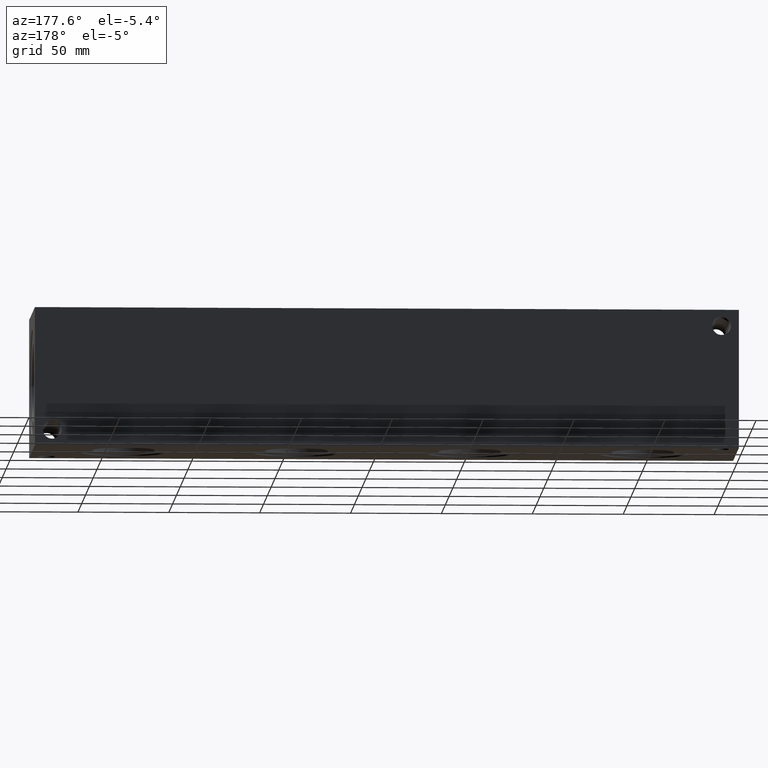
[diagram: clean part render]
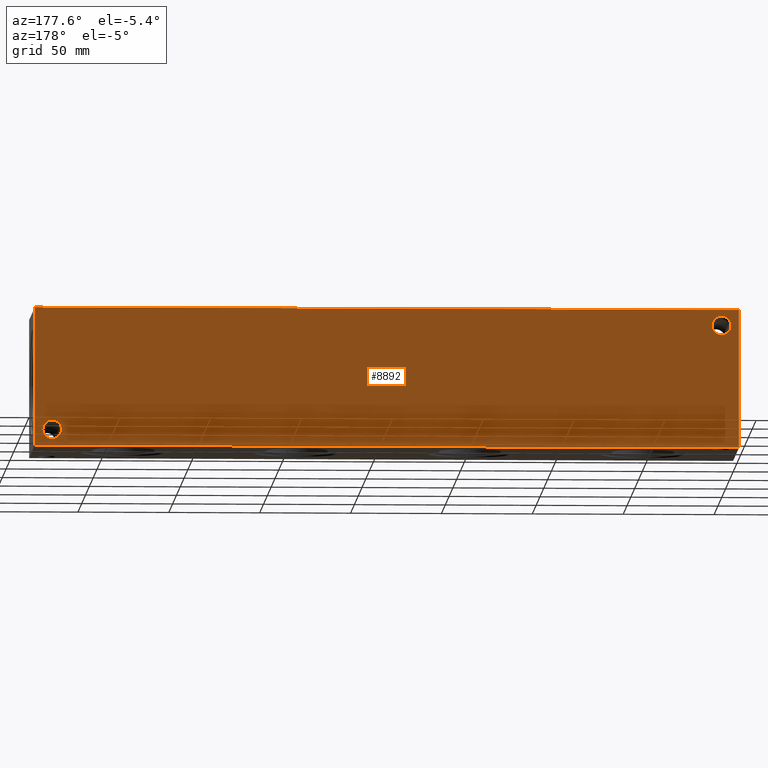
[diagram: same view with one face highlighted and labeled with its STEP entity id]
A machine part, auxiliary view. The second image highlights one B-rep face of the part: STEP entity #8892.
In plain terms, the highlighted planar face has unit normal (0, 1, 0).
Its self-contained STEP definition (entity closure, byte-faithful):
#259=CIRCLE('',#9308,5.1562);
#262=CIRCLE('',#9317,5.1562);
#418=FACE_BOUND('',#1712,.T.);
#419=FACE_BOUND('',#1713,.T.);
#1200=FACE_OUTER_BOUND('',#1711,.T.);
#1711=EDGE_LOOP('',(#7848,#7849,#7850,#7851));
#1712=EDGE_LOOP('',(#7852));
#1713=EDGE_LOOP('',(#7853));
#2025=LINE('',#13456,#2816);
#2512=LINE('',#15529,#3303);
#2513=LINE('',#15532,#3304);
#2514=LINE('',#15533,#3305);
#2816=VECTOR('',#9971,10.);
#3303=VECTOR('',#11470,10.);
#3304=VECTOR('',#11473,10.);
#3305=VECTOR('',#11474,10.);
#3615=VERTEX_POINT('',#13453);
#3616=VERTEX_POINT('',#13455);
#4031=VERTEX_POINT('',#15146);
#4036=VERTEX_POINT('',#15162);
#4134=VERTEX_POINT('',#15525);
#4136=VERTEX_POINT('',#15531);
#4596=EDGE_CURVE('',#3615,#3616,#2025,.T.);
#5203=EDGE_CURVE('',#4031,#4031,#259,.T.);
#5212=EDGE_CURVE('',#4036,#4036,#262,.T.);
#5381=EDGE_CURVE('',#4134,#3616,#2512,.T.);
#5382=EDGE_CURVE('',#4136,#4134,#2513,.T.);
#5383=EDGE_CURVE('',#4136,#3615,#2514,.T.);
#7848=ORIENTED_EDGE('',*,*,#5382,.T.);
#7849=ORIENTED_EDGE('',*,*,#5381,.T.);
#7850=ORIENTED_EDGE('',*,*,#4596,.F.);
#7851=ORIENTED_EDGE('',*,*,#5383,.F.);
#7852=ORIENTED_EDGE('',*,*,#5203,.T.);
#7853=ORIENTED_EDGE('',*,*,#5212,.T.);
#8129=PLANE('',#9500);
#8892=ADVANCED_FACE('',(#1200,#418,#419),#8129,.T.);
#9308=AXIS2_PLACEMENT_3D('',#15148,#11023,#11024);
#9317=AXIS2_PLACEMENT_3D('',#15164,#11043,#11044);
#9500=AXIS2_PLACEMENT_3D('',#15530,#11471,#11472);
#9971=DIRECTION('',(-1.,0.,0.));
#11023=DIRECTION('center_axis',(0.,-1.,0.));
#11024=DIRECTION('ref_axis',(1.,0.,0.));
#11043=DIRECTION('center_axis',(0.,-1.,0.));
#11044=DIRECTION('ref_axis',(1.,0.,0.));
#11470=DIRECTION('',(0.,0.,1.));
#11471=DIRECTION('center_axis',(0.,1.,0.));
#11472=DIRECTION('ref_axis',(-1.,0.,0.));
#11473=DIRECTION('',(-1.,0.,0.));
#11474=DIRECTION('',(0.,0.,1.));
#13453=CARTESIAN_POINT('',(387.35,76.2,76.2));
#13455=CARTESIAN_POINT('',(0.,76.2,76.2));
#13456=CARTESIAN_POINT('',(387.35,76.2,76.2));
#15146=CARTESIAN_POINT('',(4.3688,76.2,67.4624));
#15148=CARTESIAN_POINT('Origin',(9.525,76.2,67.4624));
#15162=CARTESIAN_POINT('',(372.6688,76.2,8.7376));
#15164=CARTESIAN_POINT('Origin',(377.825,76.2,8.7376));
#15525=CARTESIAN_POINT('',(0.,76.2,0.));
#15529=CARTESIAN_POINT('',(0.,76.2,0.));
#15530=CARTESIAN_POINT('Origin',(387.35,76.2,0.));
#15531=CARTESIAN_POINT('',(387.35,76.2,0.));
#15532=CARTESIAN_POINT('',(387.35,76.2,0.));
#15533=CARTESIAN_POINT('',(387.35,76.2,0.));